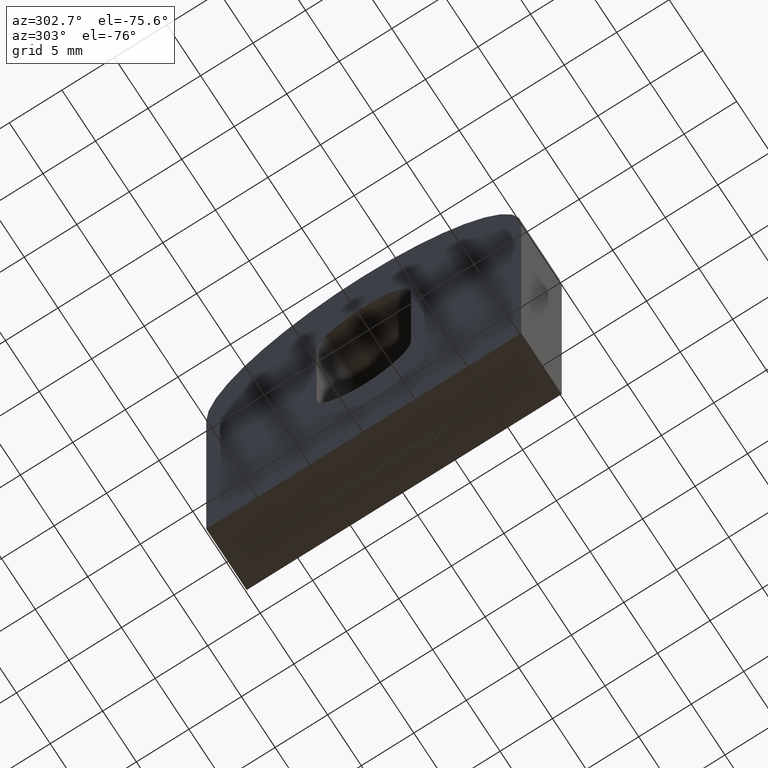
[diagram: clean part render]
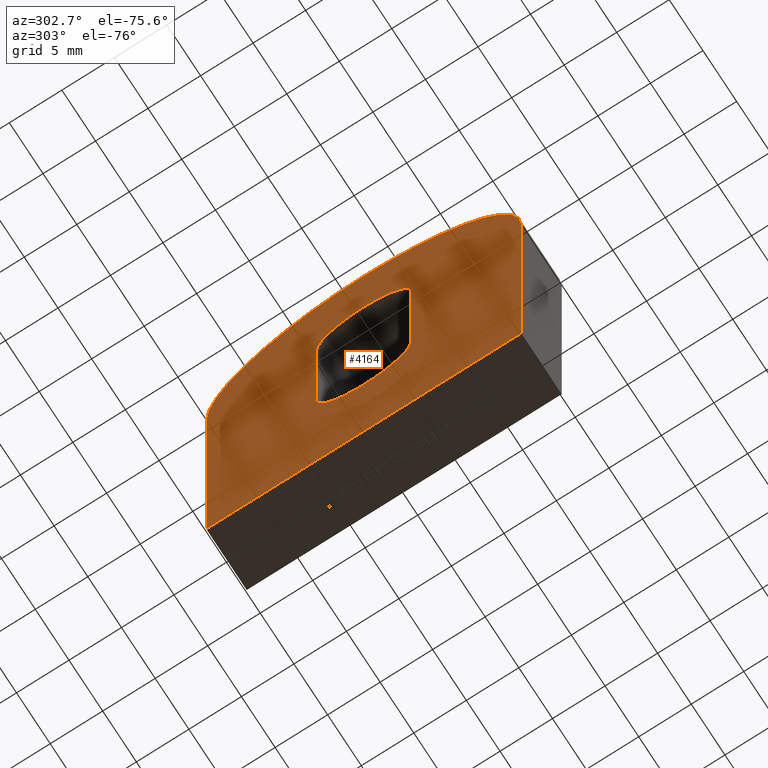
[diagram: same view with one face highlighted and labeled with its STEP entity id]
A machine part, auxiliary view. The second image highlights one B-rep face of the part: STEP entity #4164.
In plain terms, the highlighted planar face has unit normal (-1, -0, 0).
Its self-contained STEP definition (entity closure, byte-faithful):
#18 = EDGE_CURVE ( 'NONE', #2449, #1202, #4293, .T. ) ;
#31 = EDGE_CURVE ( 'NONE', #8108, #5166, #1022, .T. ) ;
#98 = CARTESIAN_POINT ( 'NONE',  ( -3.000000000000000000, 0.0000000000000000000, 49.99999999999999300 ) ) ;
#194 = ORIENTED_EDGE ( 'NONE', *, *, #5921, .T. ) ;
#241 = DIRECTION ( 'NONE',  ( 0.0000000000000000000, 4.956352788505163400E-017, -1.000000000000000000 ) ) ;
#306 = CARTESIAN_POINT ( 'NONE',  ( -3.000000000000000000, 15.00000000000000000, -3.061616997868383000E-015 ) ) ;
#307 = AXIS2_PLACEMENT_3D ( 'NONE', #2069, #3852, #2884 ) ;
#380 = DIRECTION ( 'NONE',  ( 0.0000000000000000000, 1.626303258728256700E-016, -1.000000000000000000 ) ) ;
#571 = DIRECTION ( 'NONE',  ( 0.0000000000000000000, 0.0000000000000000000, -1.000000000000000000 ) ) ;
#659 = FACE_OUTER_BOUND ( 'NONE', #4003, .T. ) ;
#871 = VERTEX_POINT ( 'NONE', #6715 ) ;
#1022 = CIRCLE ( 'NONE', #2028, 4.500000000000000900 ) ;
#1202 = VERTEX_POINT ( 'NONE', #6094 ) ;
#1227 = DIRECTION ( 'NONE',  ( 0.0000000000000000000, 0.0000000000000000000, -1.000000000000000000 ) ) ;
#1267 = VERTEX_POINT ( 'NONE', #10594 ) ;
#1458 = DIRECTION ( 'NONE',  ( 0.0000000000000000000, -1.000000000000000000, 0.0000000000000000000 ) ) ;
#1843 = VECTOR ( 'NONE', #380, 1000.000000000000000 ) ;
#1854 = AXIS2_PLACEMENT_3D ( 'NONE', #7592, #6602, #1227 ) ;
#2028 = AXIS2_PLACEMENT_3D ( 'NONE', #11376, #6008, #571 ) ;
#2037 = DIRECTION ( 'NONE',  ( 0.0000000000000000000, 0.0000000000000000000, -1.000000000000000000 ) ) ;
#2069 = CARTESIAN_POINT ( 'NONE',  ( -3.000000000000000000, 0.0000000000000000000, 34.99999999999999300 ) ) ;
#2092 = CARTESIAN_POINT ( 'NONE',  ( -3.000000000000000000, -15.00000000000000000, -3.061616997868383000E-015 ) ) ;
#2277 = CARTESIAN_POINT ( 'NONE',  ( -3.000000000000000000, -4.500000000000000900, 35.50000000000000000 ) ) ;
#2359 = VERTEX_POINT ( 'NONE', #98 ) ;
#2449 = VERTEX_POINT ( 'NONE', #306 ) ;
#2452 = EDGE_CURVE ( 'NONE', #1202, #871, #8610, .T. ) ;
#2787 = EDGE_CURVE ( 'NONE', #9750, #8108, #8333, .T. ) ;
#2875 = ORIENTED_EDGE ( 'NONE', *, *, #7594, .T. ) ;
#2884 = DIRECTION ( 'NONE',  ( 0.0000000000000000000, 0.0000000000000000000, 1.000000000000000000 ) ) ;
#2887 = EDGE_LOOP ( 'NONE', ( #3109, #2875, #8129, #8849, #9057 ) ) ;
#3109 = ORIENTED_EDGE ( 'NONE', *, *, #31, .T. ) ;
#3355 = FACE_BOUND ( 'NONE', #2887, .T. ) ;
#3398 = DIRECTION ( 'NONE',  ( -1.000000000000000000, -0.0000000000000000000, 0.0000000000000000000 ) ) ;
#3493 = VECTOR ( 'NONE', #8392, 1000.000000000000000 ) ;
#3851 = CIRCLE ( 'NONE', #8296, 15.00000000000000000 ) ;
#3852 = DIRECTION ( 'NONE',  ( -1.000000000000000000, -0.0000000000000000000, 0.0000000000000000000 ) ) ;
#3861 = EDGE_CURVE ( 'NONE', #6803, #1267, #6344, .T. ) ;
#4003 = EDGE_LOOP ( 'NONE', ( #194, #8426, #6397, #7003, #4471 ) ) ;
#4103 = DIRECTION ( 'NONE',  ( 0.0000000000000000000, 0.0000000000000000000, 1.000000000000000000 ) ) ;
#4164 = ADVANCED_FACE ( 'NONE', ( #3355, #659 ), #8093, .T. ) ;
#4293 = LINE ( 'NONE', #8655, #10894 ) ;
#4471 = ORIENTED_EDGE ( 'NONE', *, *, #2452, .T. ) ;
#4584 = CARTESIAN_POINT ( 'NONE',  ( -3.000000000000000000, 14.99999999999999800, 34.99999999999999300 ) ) ;
#4702 = DIRECTION ( 'NONE',  ( 1.000000000000000000, 0.0000000000000000000, 0.0000000000000000000 ) ) ;
#4828 = CARTESIAN_POINT ( 'NONE',  ( -3.000000000000000000, 4.500000000000000900, 35.50000000000000000 ) ) ;
#5166 = VERTEX_POINT ( 'NONE', #6455 ) ;
#5311 = EDGE_CURVE ( 'NONE', #2359, #8436, #3851, .T. ) ;
#5608 = CARTESIAN_POINT ( 'NONE',  ( -3.000000000000000000, 7.966394000823675000E-016, 19.49999999999999600 ) ) ;
#5921 = EDGE_CURVE ( 'NONE', #871, #2359, #10337, .T. ) ;
#6008 = DIRECTION ( 'NONE',  ( 1.000000000000000000, 0.0000000000000000000, 0.0000000000000000000 ) ) ;
#6094 = CARTESIAN_POINT ( 'NONE',  ( -3.000000000000000000, -15.00000000000000000, -3.061616997868383000E-015 ) ) ;
#6202 = LINE ( 'NONE', #6551, #6637 ) ;
#6344 = CIRCLE ( 'NONE', #10218, 4.500000000000000900 ) ;
#6397 = ORIENTED_EDGE ( 'NONE', *, *, #8654, .T. ) ;
#6455 = CARTESIAN_POINT ( 'NONE',  ( -3.000000000000000000, -4.500000000000000900, 35.50000000000000000 ) ) ;
#6531 = CARTESIAN_POINT ( 'NONE',  ( -3.000000000000000000, -4.499999999999998200, 19.49999999999999600 ) ) ;
#6551 = CARTESIAN_POINT ( 'NONE',  ( -3.000000000000000000, 14.99999999999999800, 34.99999999999999300 ) ) ;
#6602 = DIRECTION ( 'NONE',  ( 1.000000000000000000, 0.0000000000000000000, 0.0000000000000000000 ) ) ;
#6637 = VECTOR ( 'NONE', #241, 1000.000000000000000 ) ;
#6715 = CARTESIAN_POINT ( 'NONE',  ( -3.000000000000000000, -14.99999999999999800, 34.99999999999999300 ) ) ;
#6803 = VERTEX_POINT ( 'NONE', #6531 ) ;
#6971 = CARTESIAN_POINT ( 'NONE',  ( -3.000000000000000000, 0.0000000000000000000, 34.99999999999999300 ) ) ;
#7003 = ORIENTED_EDGE ( 'NONE', *, *, #18, .T. ) ;
#7137 = AXIS2_PLACEMENT_3D ( 'NONE', #10357, #7658, #4103 ) ;
#7335 = VECTOR ( 'NONE', #11273, 1000.000000000000000 ) ;
#7592 = CARTESIAN_POINT ( 'NONE',  ( -3.000000000000000000, 7.966394000823675000E-016, 19.49999999999999600 ) ) ;
#7594 = EDGE_CURVE ( 'NONE', #5166, #6803, #9329, .T. ) ;
#7658 = DIRECTION ( 'NONE',  ( -1.000000000000000000, -0.0000000000000000000, 0.0000000000000000000 ) ) ;
#8093 = PLANE ( 'NONE',  #307 ) ;
#8108 = VERTEX_POINT ( 'NONE', #9987 ) ;
#8129 = ORIENTED_EDGE ( 'NONE', *, *, #3861, .T. ) ;
#8296 = AXIS2_PLACEMENT_3D ( 'NONE', #6971, #3398, #11435 ) ;
#8333 = LINE ( 'NONE', #4828, #3493 ) ;
#8392 = DIRECTION ( 'NONE',  ( -0.0000000000000000000, -1.626303258728256700E-016, 1.000000000000000000 ) ) ;
#8426 = ORIENTED_EDGE ( 'NONE', *, *, #5311, .T. ) ;
#8436 = VERTEX_POINT ( 'NONE', #4584 ) ;
#8477 = CIRCLE ( 'NONE', #1854, 4.500000000000000900 ) ;
#8610 = LINE ( 'NONE', #2092, #7335 ) ;
#8654 = EDGE_CURVE ( 'NONE', #8436, #2449, #6202, .T. ) ;
#8655 = CARTESIAN_POINT ( 'NONE',  ( -3.000000000000000000, 15.00000000000000000, -3.061616997868383000E-015 ) ) ;
#8849 = ORIENTED_EDGE ( 'NONE', *, *, #10389, .T. ) ;
#9057 = ORIENTED_EDGE ( 'NONE', *, *, #2787, .T. ) ;
#9329 = LINE ( 'NONE', #2277, #1843 ) ;
#9364 = CARTESIAN_POINT ( 'NONE',  ( -3.000000000000000000, 4.500000000000003600, 19.49999999999999600 ) ) ;
#9750 = VERTEX_POINT ( 'NONE', #9364 ) ;
#9987 = CARTESIAN_POINT ( 'NONE',  ( -3.000000000000000000, 4.500000000000000900, 35.50000000000000000 ) ) ;
#10218 = AXIS2_PLACEMENT_3D ( 'NONE', #5608, #4702, #2037 ) ;
#10337 = CIRCLE ( 'NONE', #7137, 15.00000000000000000 ) ;
#10357 = CARTESIAN_POINT ( 'NONE',  ( -3.000000000000000000, 0.0000000000000000000, 34.99999999999999300 ) ) ;
#10389 = EDGE_CURVE ( 'NONE', #1267, #9750, #8477, .T. ) ;
#10594 = CARTESIAN_POINT ( 'NONE',  ( -3.000000000000000000, 7.966394000823675000E-016, 14.99999999999999600 ) ) ;
#10894 = VECTOR ( 'NONE', #1458, 1000.000000000000000 ) ;
#11273 = DIRECTION ( 'NONE',  ( 0.0000000000000000000, 4.956352788505163400E-017, 1.000000000000000000 ) ) ;
#11376 = CARTESIAN_POINT ( 'NONE',  ( -3.000000000000000000, -1.776356839400250900E-015, 35.50000000000000000 ) ) ;
#11435 = DIRECTION ( 'NONE',  ( 0.0000000000000000000, 0.0000000000000000000, 1.000000000000000000 ) ) ;